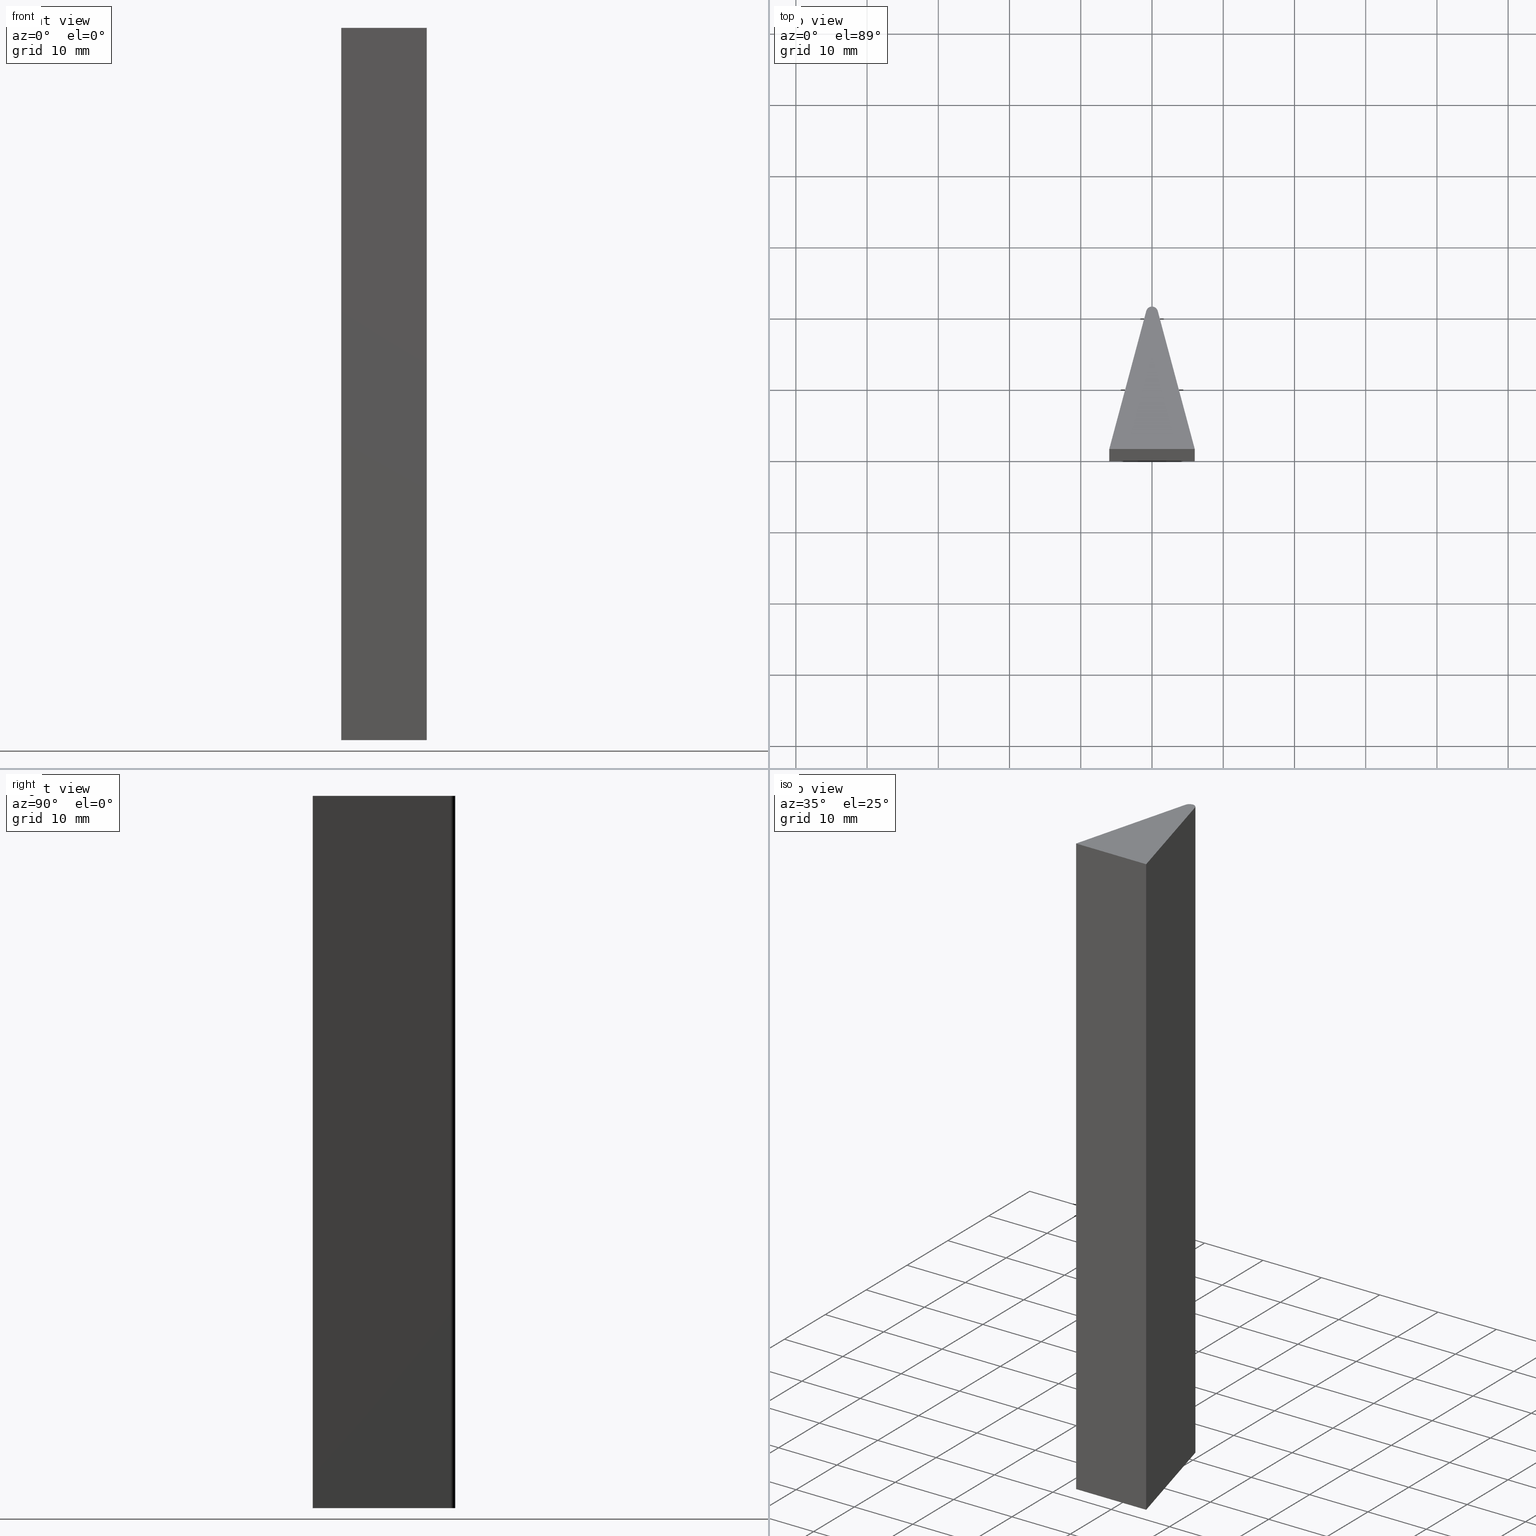
[diagram: canonical four-view strip — front | top / right | iso, engineering-drawing reading convention]
A machine part, canonical four-view strip (front | top / right | iso — engineering-drawing reading convention). The complete STEP part file that produces these views, byte-faithful:
ISO-10303-21;
HEADER;
/* Generated by software containing ST-Developer
 * from STEP Tools, Inc. (www.steptools.com) 
 */

FILE_DESCRIPTION(
/* description */ (''),
/* implementation_level */ '2;1');

FILE_NAME(
/* name */ 'E_3_01_08_00_00_WKZ-0127.stp',
/* time_stamp */ '2025-11-24T11:47:07+01:00',
/* author */ ('d.fischer'),
/* organization */ (''),
/* preprocessor_version */ 'ST-DEVELOPER v20',
/* originating_system */ 'Autodesk Inventor 2025',
/* authorisation */ '');

FILE_SCHEMA (('AUTOMOTIVE_DESIGN { 1 0 10303 214 3 1 1 }'));
ENDSEC;

DATA;
#10=MECHANICAL_DESIGN_GEOMETRIC_PRESENTATION_REPRESENTATION('',(#14,#15),
#195);
#11=SHAPE_REPRESENTATION_RELATIONSHIP('SRR','None',#202,#12);
#12=ADVANCED_BREP_SHAPE_REPRESENTATION('',(#13),#194);
#13=MANIFOLD_SOLID_BREP('Volumenk\X\F6rper1',#106);
#14=STYLED_ITEM('',(#212),#104);
#15=STYLED_ITEM('',(#211),#13);
#16=CYLINDRICAL_SURFACE('',#132,0.83538851287625);
#17=FACE_OUTER_BOUND('',#23,.T.);
#18=FACE_OUTER_BOUND('',#24,.T.);
#19=FACE_OUTER_BOUND('',#25,.T.);
#20=FACE_OUTER_BOUND('',#26,.T.);
#21=FACE_OUTER_BOUND('',#27,.T.);
#22=FACE_OUTER_BOUND('',#28,.T.);
#23=EDGE_LOOP('',(#71,#72,#73,#74));
#24=EDGE_LOOP('',(#75,#76,#77,#78));
#25=EDGE_LOOP('',(#79,#80,#81,#82));
#26=EDGE_LOOP('',(#83,#84,#85,#86));
#27=EDGE_LOOP('',(#87,#88,#89,#90));
#28=EDGE_LOOP('',(#91,#92,#93,#94));
#29=CIRCLE('',#130,0.83538851287625);
#30=CIRCLE('',#133,0.83538851287625);
#31=LINE('',#169,#41);
#32=LINE('',#171,#42);
#33=LINE('',#173,#43);
#34=LINE('',#178,#44);
#35=LINE('',#179,#45);
#36=LINE('',#180,#46);
#37=LINE('',#184,#47);
#38=LINE('',#187,#48);
#39=LINE('',#188,#49);
#40=LINE('',#190,#50);
#41=VECTOR('',#141,10.);
#42=VECTOR('',#142,10.);
#43=VECTOR('',#143,10.);
#44=VECTOR('',#148,10.);
#45=VECTOR('',#149,10.);
#46=VECTOR('',#150,10.);
#47=VECTOR('',#155,10.);
#48=VECTOR('',#158,10.);
#49=VECTOR('',#159,10.);
#50=VECTOR('',#162,10.);
#51=VERTEX_POINT('',#167);
#52=VERTEX_POINT('',#168);
#53=VERTEX_POINT('',#170);
#54=VERTEX_POINT('',#172);
#55=VERTEX_POINT('',#176);
#56=VERTEX_POINT('',#177);
#57=VERTEX_POINT('',#182);
#58=VERTEX_POINT('',#186);
#59=EDGE_CURVE('',#51,#52,#31,.T.);
#60=EDGE_CURVE('',#53,#51,#32,.T.);
#61=EDGE_CURVE('',#54,#53,#33,.T.);
#62=EDGE_CURVE('',#52,#54,#29,.T.);
#63=EDGE_CURVE('',#55,#56,#34,.T.);
#64=EDGE_CURVE('',#56,#54,#35,.T.);
#65=EDGE_CURVE('',#55,#53,#36,.T.);
#66=EDGE_CURVE('',#56,#57,#30,.T.);
#67=EDGE_CURVE('',#57,#52,#37,.T.);
#68=EDGE_CURVE('',#57,#58,#38,.T.);
#69=EDGE_CURVE('',#51,#58,#39,.T.);
#70=EDGE_CURVE('',#58,#55,#40,.T.);
#71=ORIENTED_EDGE('',*,*,#59,.F.);
#72=ORIENTED_EDGE('',*,*,#60,.F.);
#73=ORIENTED_EDGE('',*,*,#61,.F.);
#74=ORIENTED_EDGE('',*,*,#62,.F.);
#75=ORIENTED_EDGE('',*,*,#63,.T.);
#76=ORIENTED_EDGE('',*,*,#64,.T.);
#77=ORIENTED_EDGE('',*,*,#61,.T.);
#78=ORIENTED_EDGE('',*,*,#65,.F.);
#79=ORIENTED_EDGE('',*,*,#66,.T.);
#80=ORIENTED_EDGE('',*,*,#67,.T.);
#81=ORIENTED_EDGE('',*,*,#62,.T.);
#82=ORIENTED_EDGE('',*,*,#64,.F.);
#83=ORIENTED_EDGE('',*,*,#68,.T.);
#84=ORIENTED_EDGE('',*,*,#69,.F.);
#85=ORIENTED_EDGE('',*,*,#59,.T.);
#86=ORIENTED_EDGE('',*,*,#67,.F.);
#87=ORIENTED_EDGE('',*,*,#70,.T.);
#88=ORIENTED_EDGE('',*,*,#65,.T.);
#89=ORIENTED_EDGE('',*,*,#60,.T.);
#90=ORIENTED_EDGE('',*,*,#69,.T.);
#91=ORIENTED_EDGE('',*,*,#63,.F.);
#92=ORIENTED_EDGE('',*,*,#70,.F.);
#93=ORIENTED_EDGE('',*,*,#68,.F.);
#94=ORIENTED_EDGE('',*,*,#66,.F.);
#95=PLANE('',#129);
#96=PLANE('',#131);
#97=PLANE('',#134);
#98=PLANE('',#135);
#99=PLANE('',#136);
#100=ADVANCED_FACE('',(#17),#95,.F.);
#101=ADVANCED_FACE('',(#18),#96,.T.);
#102=ADVANCED_FACE('',(#19),#16,.T.);
#103=ADVANCED_FACE('',(#20),#97,.T.);
#104=ADVANCED_FACE('',(#21),#98,.T.);
#105=ADVANCED_FACE('',(#22),#99,.T.);
#106=CLOSED_SHELL('',(#100,#101,#102,#103,#104,#105));
#107=DERIVED_UNIT_ELEMENT(#110,1.);
#108=DERIVED_UNIT_ELEMENT(#197,-3.);
#109=DIMENSIONAL_EXPONENTS(0.,1.,0.,0.,0.,0.,0.);
#110=(
CONVERSION_BASED_UNIT('gram',#112)
MASS_UNIT()
NAMED_UNIT(#109)
);
#111=(
MASS_UNIT()
NAMED_UNIT(*)
SI_UNIT(.KILO.,.GRAM.)
);
#112=MASS_MEASURE_WITH_UNIT(MASS_MEASURE(0.001),#111);
#113=DERIVED_UNIT((#107,#108));
#114=MEASURE_REPRESENTATION_ITEM('density measure',
POSITIVE_RATIO_MEASURE(8.03),#113);
#115=PROPERTY_DEFINITION_REPRESENTATION(#120,#117);
#116=PROPERTY_DEFINITION_REPRESENTATION(#121,#118);
#117=REPRESENTATION('material name',(#119),#194);
#118=REPRESENTATION('density',(#114),#194);
#119=DESCRIPTIVE_REPRESENTATION_ITEM('1.4301','1.4301');
#120=PROPERTY_DEFINITION('material property','material name',#204);
#121=PROPERTY_DEFINITION('material property','density of part',#204);
#122=DATE_TIME_ROLE('creation_date');
#123=APPLIED_DATE_AND_TIME_ASSIGNMENT(#124,#122,(#204));
#124=DATE_AND_TIME(#125,#126);
#125=CALENDAR_DATE(2011,18,10);
#126=LOCAL_TIME(0,0,0.,#127);
#127=COORDINATED_UNIVERSAL_TIME_OFFSET(0,0,.BEHIND.);
#128=AXIS2_PLACEMENT_3D('',#165,#137,#138);
#129=AXIS2_PLACEMENT_3D('',#166,#139,#140);
#130=AXIS2_PLACEMENT_3D('',#174,#144,#145);
#131=AXIS2_PLACEMENT_3D('',#175,#146,#147);
#132=AXIS2_PLACEMENT_3D('',#181,#151,#152);
#133=AXIS2_PLACEMENT_3D('',#183,#153,#154);
#134=AXIS2_PLACEMENT_3D('',#185,#156,#157);
#135=AXIS2_PLACEMENT_3D('',#189,#160,#161);
#136=AXIS2_PLACEMENT_3D('',#191,#163,#164);
#137=DIRECTION('axis',(0.,0.,1.));
#138=DIRECTION('refdir',(1.,0.,0.));
#139=DIRECTION('center_axis',(0.,0.,1.));
#140=DIRECTION('ref_axis',(1.,0.,0.));
#141=DIRECTION('',(-0.25881904510252,0.965925826289068,0.));
#142=DIRECTION('',(1.,0.,0.));
#143=DIRECTION('',(-0.25881904510252,-0.965925826289068,0.));
#144=DIRECTION('center_axis',(0.,0.,1.));
#145=DIRECTION('ref_axis',(-0.965925826289069,-0.25881904510252,0.));
#146=DIRECTION('center_axis',(-0.965925826289068,0.25881904510252,0.));
#147=DIRECTION('ref_axis',(0.,0.,1.));
#148=DIRECTION('',(0.25881904510252,0.965925826289068,0.));
#149=DIRECTION('',(0.,0.,-1.));
#150=DIRECTION('',(0.,0.,-1.));
#151=DIRECTION('center_axis',(0.,0.,1.));
#152=DIRECTION('ref_axis',(-0.965925826289069,-0.25881904510252,0.));
#153=DIRECTION('center_axis',(0.,0.,-1.));
#154=DIRECTION('ref_axis',(-0.965925826289069,-0.25881904510252,0.));
#155=DIRECTION('',(0.,0.,-1.));
#156=DIRECTION('center_axis',(0.965925826289068,0.25881904510252,0.));
#157=DIRECTION('ref_axis',(0.,0.,-1.));
#158=DIRECTION('',(0.25881904510252,-0.965925826289068,0.));
#159=DIRECTION('',(0.,0.,1.));
#160=DIRECTION('center_axis',(0.,-1.,0.));
#161=DIRECTION('ref_axis',(0.,0.,-1.));
#162=DIRECTION('',(-1.,0.,0.));
#163=DIRECTION('center_axis',(0.,0.,1.));
#164=DIRECTION('ref_axis',(1.,0.,0.));
#165=CARTESIAN_POINT('',(0.,0.,0.));
#166=CARTESIAN_POINT('Origin',(2.77555756156289E-16,7.95422510156349,-50.));
#167=CARTESIAN_POINT('',(6.,-1.11022302462516E-15,-50.));
#168=CARTESIAN_POINT('',(0.806923339572389,19.380825944316,-50.));
#169=CARTESIAN_POINT('',(0.806923339572389,19.380825944316,-50.));
#170=CARTESIAN_POINT('',(-6.,-1.11022302462516E-15,-50.));
#171=CARTESIAN_POINT('',(6.,-1.11022302462516E-15,-50.));
#172=CARTESIAN_POINT('',(-0.806923339572389,19.380825944316,-50.));
#173=CARTESIAN_POINT('',(-6.,-1.11022302462516E-15,-50.));
#174=CARTESIAN_POINT('Origin',(0.,19.1646114871238,-50.));
#175=CARTESIAN_POINT('Origin',(-6.,-1.11022302462516E-15,0.));
#176=CARTESIAN_POINT('',(-6.,-1.11022302462516E-15,50.));
#177=CARTESIAN_POINT('',(-0.806923339572389,19.380825944316,50.));
#178=CARTESIAN_POINT('',(-6.,-1.11022302462516E-15,50.));
#179=CARTESIAN_POINT('',(-0.806923339572389,19.380825944316,0.));
#180=CARTESIAN_POINT('',(-6.,-1.11022302462516E-15,0.));
#181=CARTESIAN_POINT('Origin',(0.,19.1646114871238,0.));
#182=CARTESIAN_POINT('',(0.806923339572389,19.380825944316,50.));
#183=CARTESIAN_POINT('Origin',(0.,19.1646114871238,50.));
#184=CARTESIAN_POINT('',(0.806923339572389,19.380825944316,0.));
#185=CARTESIAN_POINT('Origin',(0.806923339572389,19.380825944316,0.));
#186=CARTESIAN_POINT('',(6.,-1.11022302462516E-15,50.));
#187=CARTESIAN_POINT('',(0.806923339572389,19.380825944316,50.));
#188=CARTESIAN_POINT('',(6.,-1.11022302462516E-15,0.));
#189=CARTESIAN_POINT('Origin',(6.,-1.11022302462516E-15,0.));
#190=CARTESIAN_POINT('',(6.,-1.11022302462516E-15,50.));
#191=CARTESIAN_POINT('Origin',(2.77555756156289E-16,7.95422510156349,50.));
#192=UNCERTAINTY_MEASURE_WITH_UNIT(LENGTH_MEASURE(0.01),#196,
'DISTANCE_ACCURACY_VALUE',
'Maximum model space distance between geometric entities at asserted c
onnectivities');
#193=UNCERTAINTY_MEASURE_WITH_UNIT(LENGTH_MEASURE(0.01),#196,
'DISTANCE_ACCURACY_VALUE',
'Maximum model space distance between geometric entities at asserted c
onnectivities');
#194=(
GEOMETRIC_REPRESENTATION_CONTEXT(3)
GLOBAL_UNCERTAINTY_ASSIGNED_CONTEXT((#192))
GLOBAL_UNIT_ASSIGNED_CONTEXT((#196,#198,#199))
REPRESENTATION_CONTEXT('','3D')
);
#195=(
GEOMETRIC_REPRESENTATION_CONTEXT(3)
GLOBAL_UNCERTAINTY_ASSIGNED_CONTEXT((#193))
GLOBAL_UNIT_ASSIGNED_CONTEXT((#196,#198,#199))
REPRESENTATION_CONTEXT('','3D')
);
#196=(
LENGTH_UNIT()
NAMED_UNIT(*)
SI_UNIT(.MILLI.,.METRE.)
);
#197=(
LENGTH_UNIT()
NAMED_UNIT(*)
SI_UNIT(.CENTI.,.METRE.)
);
#198=(
NAMED_UNIT(*)
PLANE_ANGLE_UNIT()
SI_UNIT($,.RADIAN.)
);
#199=(
NAMED_UNIT(*)
SI_UNIT($,.STERADIAN.)
SOLID_ANGLE_UNIT()
);
#200=SHAPE_DEFINITION_REPRESENTATION(#201,#202);
#201=PRODUCT_DEFINITION_SHAPE('',$,#204);
#202=SHAPE_REPRESENTATION('',(#128),#194);
#203=PRODUCT_DEFINITION_CONTEXT('part definition',#208,'design');
#204=PRODUCT_DEFINITION('WKZ-0127','E_3_01_08_00_00_WKZ-0127',#205,#203);
#205=PRODUCT_DEFINITION_FORMATION('',$,#210);
#206=PRODUCT_RELATED_PRODUCT_CATEGORY('E_3_01_08_00_00_WKZ-0127',
'E_3_01_08_00_00_WKZ-0127',(#210));
#207=APPLICATION_PROTOCOL_DEFINITION('international standard',
'automotive_design',2009,#208);
#208=APPLICATION_CONTEXT(
'Core Data for Automotive Mechanical Design Process');
#209=PRODUCT_CONTEXT('part definition',#208,'mechanical');
#210=PRODUCT('WKZ-0127','E_3_01_08_00_00_WKZ-0127',$,(#209));
#211=PRESENTATION_STYLE_ASSIGNMENT((#213));
#212=PRESENTATION_STYLE_ASSIGNMENT((#214));
#213=SURFACE_STYLE_USAGE(.BOTH.,#217);
#214=SURFACE_STYLE_USAGE(.BOTH.,#218);
#215=SURFACE_STYLE_RENDERING_WITH_PROPERTIES($,#225,(#216));
#216=SURFACE_STYLE_TRANSPARENT(0.);
#217=SURFACE_SIDE_STYLE('',(#219,#215));
#218=SURFACE_SIDE_STYLE('',(#220));
#219=SURFACE_STYLE_FILL_AREA(#221);
#220=SURFACE_STYLE_FILL_AREA(#222);
#221=FILL_AREA_STYLE('',(#223));
#222=FILL_AREA_STYLE('',(#224));
#223=FILL_AREA_STYLE_COLOUR('',#225);
#224=FILL_AREA_STYLE_COLOUR('',#226);
#225=COLOUR_RGB('',0.92156862745098,0.92156862745098,0.92156862745098);
#226=COLOUR_RGB('',0.16078431372549,0.16078431372549,0.16078431372549);
ENDSEC;
END-ISO-10303-21;
